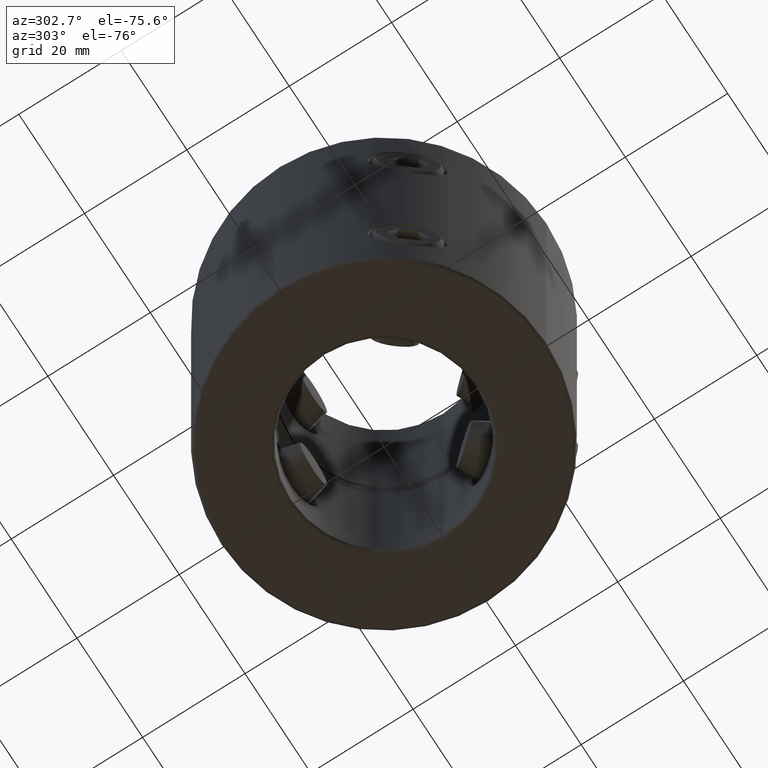
[diagram: clean part render]
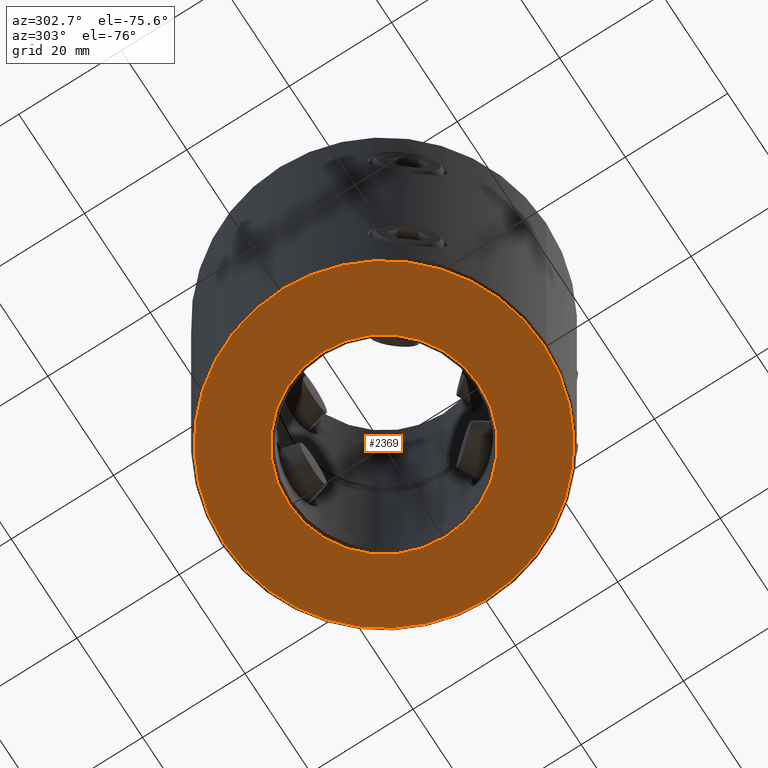
[diagram: same view with one face highlighted and labeled with its STEP entity id]
A machine part, auxiliary view. The second image highlights one B-rep face of the part: STEP entity #2369.
In plain terms, the highlighted planar face has unit normal (-0, 0, -1).
Its self-contained STEP definition (entity closure, byte-faithful):
#1255=VERTEX_POINT('NONE',#3379);
#2073=EDGE_CURVE('NONE',#2615,#1255,#4296,.T.);
#2119=EDGE_CURVE('NONE',#1255,#2615,#4348,.T.);
#2369=ADVANCED_FACE('NONE',(#4639,#4640),#4641,.T.);
#2615=VERTEX_POINT('NONE',#4920);
#2727=EDGE_CURVE('NONE',#2797,#2869,#5046,.T.);
#2771=EDGE_CURVE('NONE',#2869,#2797,#5093,.T.);
#2797=VERTEX_POINT('NONE',#5121);
#2869=VERTEX_POINT('NONE',#5206);
#3379=CARTESIAN_POINT('',(2.61861252083052E-015,31.2283882181415,-80.0));
#4296=CIRCLE('',#7548,31.2283882181415);
#4348=CIRCLE('',#7658,31.2283882181415);
#4639=FACE_OUTER_BOUND('',#8196,.T.);
#4640=FACE_BOUND('',#8197,.T.);
#4641=PLANE('',#8198);
#4920=CARTESIAN_POINT('',(-1.23757419744091E-015,-31.2283882181415,-80.0));
#5046=CIRCLE('',#8887,18.64775010008);
#5093=CIRCLE('',#9113,18.64775010008);
#5121=CARTESIAN_POINT('',(-2.28361532570499E-015,18.6477501000801,-80.0));
#5206=CARTESIAN_POINT('',(-1.29398418138517E-030,-18.6477501000801,-80.0));
#7548=AXIS2_PLACEMENT_3D('',#11328,#11329,#11330);
#7658=AXIS2_PLACEMENT_3D('',#11395,#11396,#11397);
#8196=EDGE_LOOP('',(#11803,#11804));
#8197=EDGE_LOOP('',(#11805,#11806));
#8198=AXIS2_PLACEMENT_3D('',#11807,#11808,#11809);
#8887=AXIS2_PLACEMENT_3D('',#12298,#12299,#12300);
#9113=AXIS2_PLACEMENT_3D('',#12335,#12336,#12337);
#11328=CARTESIAN_POINT('',(4.56414044000959E-017,0.0,-80.0));
#11329=DIRECTION('',(-7.11034470860199E-015,0.0,-1.0));
#11330=DIRECTION('',(-1.0,0.0,7.11034470860199E-015));
#11395=CARTESIAN_POINT('',(4.56414044000959E-017,0.0,-80.0));
#11396=DIRECTION('',(-7.11034470860199E-015,0.0,-1.0));
#11397=DIRECTION('',(-1.0,0.0,7.11034470860199E-015));
#11803=ORIENTED_EDGE('',*,*,#2119,.T.);
#11804=ORIENTED_EDGE('',*,*,#2073,.T.);
#11805=ORIENTED_EDGE('',*,*,#2771,.F.);
#11806=ORIENTED_EDGE('',*,*,#2727,.F.);
#11807=CARTESIAN_POINT('',(-6.08552058667353E-016,0.0,-80.0));
#11808=DIRECTION('',(-6.92211151635203E-015,0.0,-1.0));
#11809=DIRECTION('',(1.0,0.0,-6.92211151635203E-015));
#12298=CARTESIAN_POINT('',(5.78124455734435E-017,0.0,-80.0));
#12299=DIRECTION('',(-6.69786379590072E-015,-0.0,-1.0));
#12300=DIRECTION('',(1.0,0.0,-6.69786379590072E-015));
#12335=CARTESIAN_POINT('',(5.78124455734435E-017,0.0,-80.0));
#12336=DIRECTION('',(-6.69786379590072E-015,-0.0,-1.0));
#12337=DIRECTION('',(1.0,0.0,-6.69786379590072E-015));